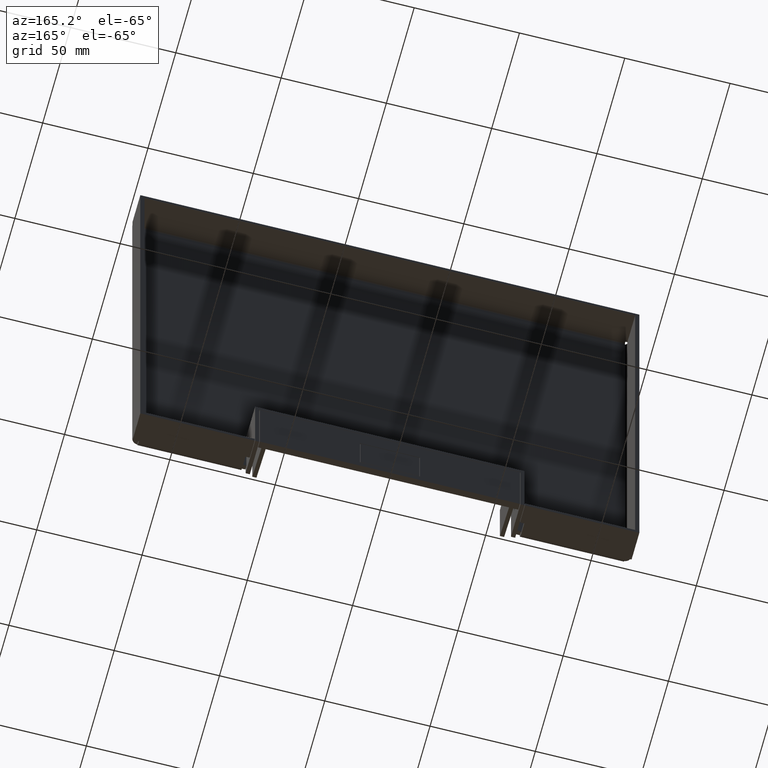
[diagram: clean part render]
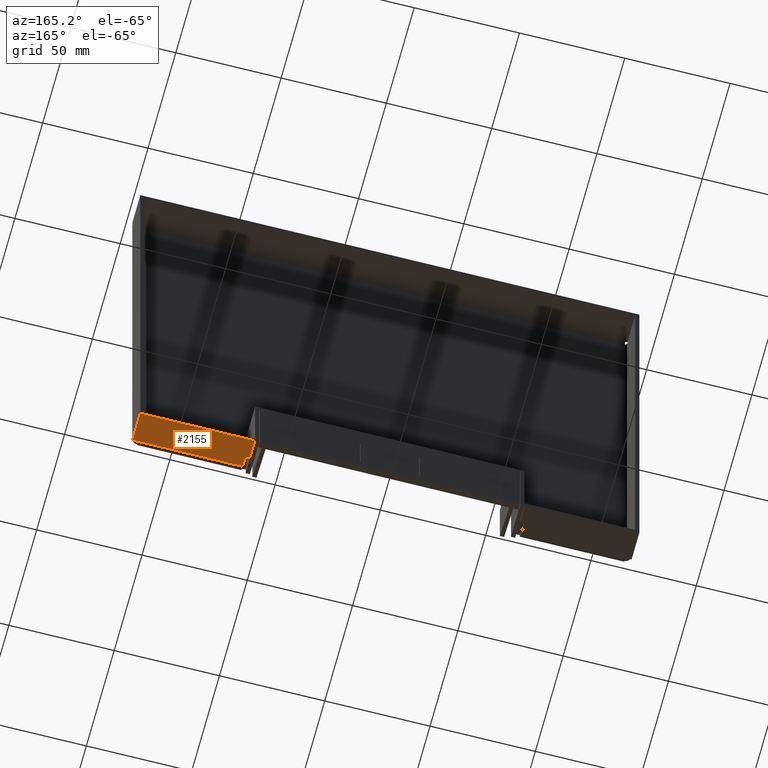
[diagram: same view with one face highlighted and labeled with its STEP entity id]
A machine part, auxiliary view. The second image highlights one B-rep face of the part: STEP entity #2155.
In plain terms, the highlighted planar face has unit normal (0, 0, -1).
Its self-contained STEP definition (entity closure, byte-faithful):
#511=DIRECTION('',(-1.E0,0.E0,0.E0));
#512=VECTOR('',#511,4.93E1);
#513=CARTESIAN_POINT('',(1.155E2,3.E0,-1.185E2));
#514=LINE('',#513,#512);
#915=DIRECTION('',(0.E0,1.E0,0.E0));
#916=VECTOR('',#915,5.1E0);
#917=CARTESIAN_POINT('',(6.62E1,3.E0,-1.185E2));
#918=LINE('',#917,#916);
#919=DIRECTION('',(1.E0,0.E0,0.E0));
#920=VECTOR('',#919,3.E0);
#921=CARTESIAN_POINT('',(1.155E2,3.E0,-1.185E2));
#922=LINE('',#921,#920);
#923=DIRECTION('',(0.E0,1.E0,0.E0));
#924=VECTOR('',#923,1.4E1);
#925=CARTESIAN_POINT('',(1.185E2,3.E0,-1.185E2));
#926=LINE('',#925,#924);
#927=DIRECTION('',(0.E0,1.E0,0.E0));
#928=VECTOR('',#927,8.9E0);
#929=CARTESIAN_POINT('',(6.415E1,8.1E0,-1.185E2));
#930=LINE('',#929,#928);
#931=DIRECTION('',(-1.E0,0.E0,0.E0));
#932=VECTOR('',#931,2.05E0);
#933=CARTESIAN_POINT('',(6.62E1,8.1E0,-1.185E2));
#934=LINE('',#933,#932);
#967=DIRECTION('',(1.E0,0.E0,0.E0));
#968=VECTOR('',#967,5.435E1);
#969=CARTESIAN_POINT('',(6.415E1,1.7E1,-1.185E2));
#970=LINE('',#969,#968);
#1173=CARTESIAN_POINT('',(1.155E2,3.E0,-1.185E2));
#1174=CARTESIAN_POINT('',(1.185E2,3.E0,-1.185E2));
#1175=VERTEX_POINT('',#1173);
#1176=VERTEX_POINT('',#1174);
#1181=CARTESIAN_POINT('',(1.185E2,1.7E1,-1.185E2));
#1183=VERTEX_POINT('',#1181);
#1199=CARTESIAN_POINT('',(6.415E1,1.7E1,-1.185E2));
#1200=VERTEX_POINT('',#1199);
#1213=CARTESIAN_POINT('',(6.62E1,3.E0,-1.185E2));
#1214=CARTESIAN_POINT('',(6.62E1,8.1E0,-1.185E2));
#1215=VERTEX_POINT('',#1213);
#1216=VERTEX_POINT('',#1214);
#1265=CARTESIAN_POINT('',(6.415E1,8.1E0,-1.185E2));
#1266=VERTEX_POINT('',#1265);
#2135=CARTESIAN_POINT('',(-2.74428E1,0.E0,-1.185E2));
#2136=DIRECTION('',(0.E0,0.E0,-1.E0));
#2137=DIRECTION('',(-1.E0,0.E0,0.E0));
#2138=AXIS2_PLACEMENT_3D('',#2135,#2136,#2137);
#2139=PLANE('',#2138);
#2141=ORIENTED_EDGE('',*,*,#2140,.F.);
#2142=ORIENTED_EDGE('',*,*,#1545,.F.);
#2144=ORIENTED_EDGE('',*,*,#2143,.T.);
#2146=ORIENTED_EDGE('',*,*,#2145,.T.);
#2148=ORIENTED_EDGE('',*,*,#2147,.F.);
#2150=ORIENTED_EDGE('',*,*,#2149,.F.);
#2152=ORIENTED_EDGE('',*,*,#2151,.F.);
#2153=EDGE_LOOP('',(#2141,#2142,#2144,#2146,#2148,#2150,#2152));
#2154=FACE_OUTER_BOUND('',#2153,.F.);
#1545=EDGE_CURVE('',#1175,#1215,#514,.T.);
#2140=EDGE_CURVE('',#1215,#1216,#918,.T.);
#2143=EDGE_CURVE('',#1175,#1176,#922,.T.);
#2145=EDGE_CURVE('',#1176,#1183,#926,.T.);
#2147=EDGE_CURVE('',#1200,#1183,#970,.T.);
#2149=EDGE_CURVE('',#1266,#1200,#930,.T.);
#2151=EDGE_CURVE('',#1216,#1266,#934,.T.);
#2155=ADVANCED_FACE('',(#2154),#2139,.T.);